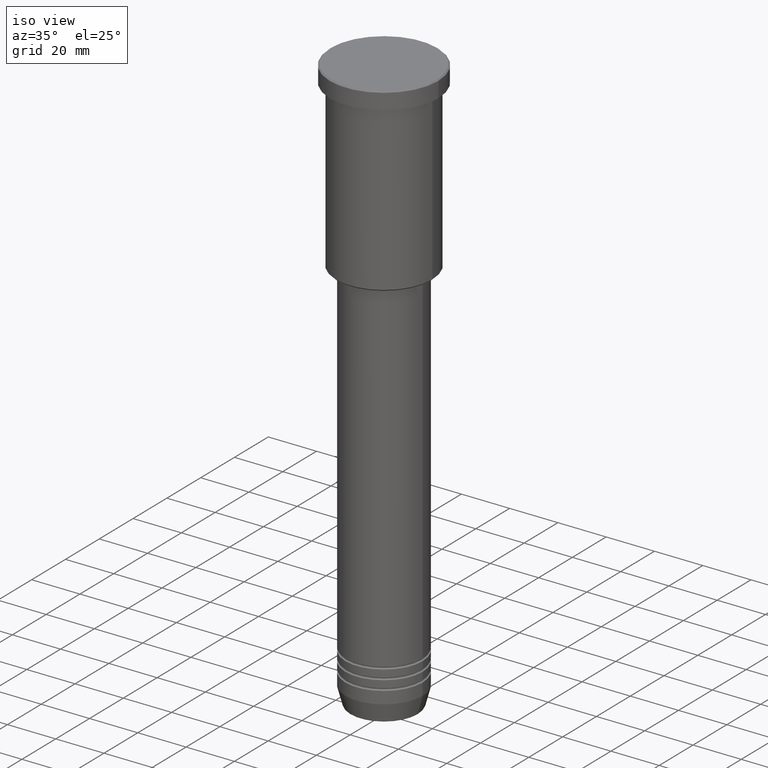
[diagram: clean part render]
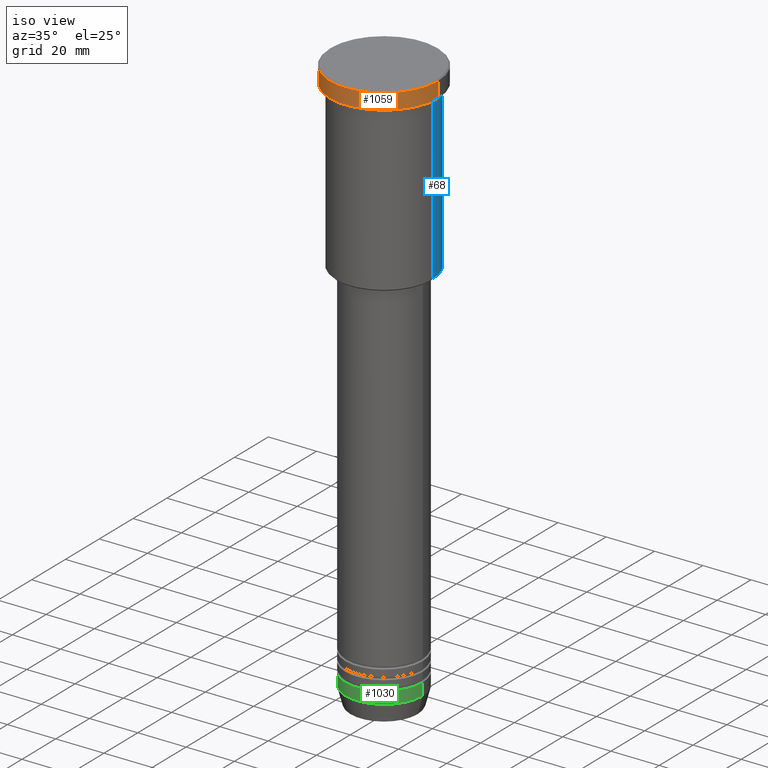
[diagram: same view with three faces highlighted in distinct colors, each labeled with its STEP entity id]
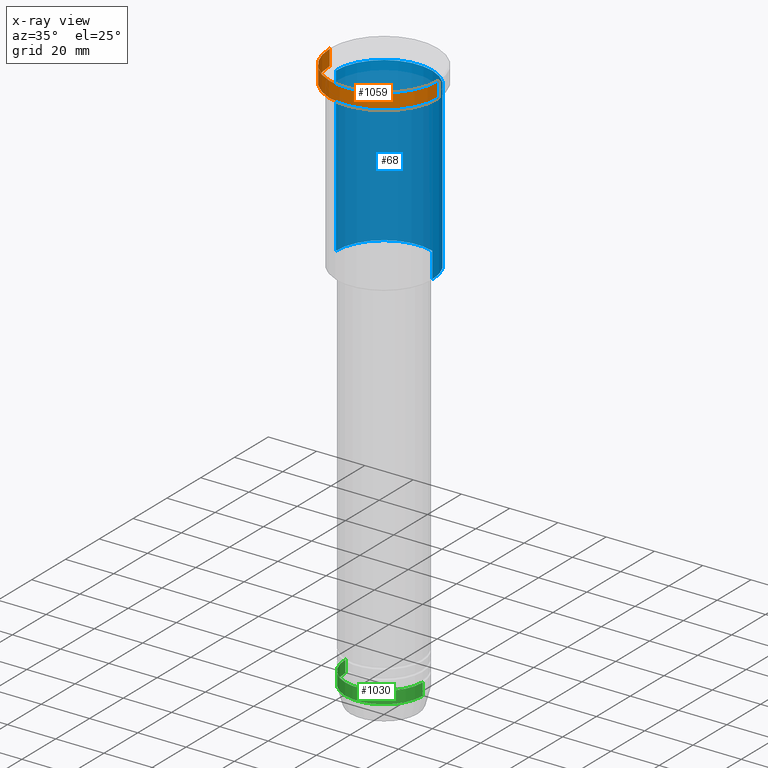
[diagram: x-ray of the same camera — body ghosted, the three highlighted faces saturated]
A machine part, iso view with three faces highlighted in distinct colors.
The next image is the same camera in x-ray (body ghosted, the three faces saturated) — at least one of them is partly hidden behind the body in this view.
Their STEP definitions:

[orange] entity #1059 — the highlighted cylindrical surface (partial cylindrical patch) has radius 22.5 mm, axis along (-0, -0, 1).
#34 = CARTESIAN_POINT ( 'NONE',  ( 22.50000000000000000, 0.000000000000000000, 0.000000000000000000 ) ) ;
#36 = CARTESIAN_POINT ( 'NONE',  ( -22.50000000000000000, 2.755455298081544778E-15, -6.999999999999995559 ) ) ;
#41 = CIRCLE ( 'NONE', #716, 22.50000000000000000 ) ;
#106 = DIRECTION ( 'NONE',  ( 0.000000000000000000, 0.000000000000000000, -1.000000000000000000 ) ) ;
#114 = CARTESIAN_POINT ( 'NONE',  ( -22.50000000000000000, 2.755455298081544778E-15, -0.5000000000000490719 ) ) ;
#122 = EDGE_CURVE ( 'NONE', #590, #516, #639, .T. ) ;
#123 = VECTOR ( 'NONE', #886, 1000.000000000000000 ) ;
#155 = DIRECTION ( 'NONE',  ( 1.000000000000000000, 0.000000000000000000, 0.000000000000000000 ) ) ;
#177 = ORIENTED_EDGE ( 'NONE', *, *, #744, .T. ) ;
#180 = DIRECTION ( 'NONE',  ( -0.000000000000000000, -0.000000000000000000, 1.000000000000000000 ) ) ;
#191 = CARTESIAN_POINT ( 'NONE',  ( 0.000000000000000000, 0.000000000000000000, -6.999999999999995559 ) ) ;
#272 = VERTEX_POINT ( 'NONE', #876 ) ;
#395 = AXIS2_PLACEMENT_3D ( 'NONE', #685, #106, #752 ) ;
#438 = AXIS2_PLACEMENT_3D ( 'NONE', #988, #180, #155 ) ;
#473 = DIRECTION ( 'NONE',  ( 1.000000000000000000, 0.000000000000000000, 0.000000000000000000 ) ) ;
#501 = DIRECTION ( 'NONE',  ( -0.000000000000000000, -0.000000000000000000, 1.000000000000000000 ) ) ;
#513 = ORIENTED_EDGE ( 'NONE', *, *, #803, .T. ) ;
#516 = VERTEX_POINT ( 'NONE', #114 ) ;
#557 = CYLINDRICAL_SURFACE ( 'NONE', #438, 22.50000000000000000 ) ;
#564 = CARTESIAN_POINT ( 'NONE',  ( 22.50000000000000000, 0.000000000000000000, -0.5000000000000490719 ) ) ;
#590 = VERTEX_POINT ( 'NONE', #36 ) ;
#639 = LINE ( 'NONE', #976, #123 ) ;
#676 = LINE ( 'NONE', #34, #909 ) ;
#685 = CARTESIAN_POINT ( 'NONE',  ( 0.000000000000000000, 0.000000000000000000, -0.5000000000000490719 ) ) ;
#716 = AXIS2_PLACEMENT_3D ( 'NONE', #191, #764, #473 ) ;
#744 = EDGE_CURVE ( 'NONE', #272, #1100, #676, .T. ) ;
#752 = DIRECTION ( 'NONE',  ( 1.000000000000000000, 0.000000000000000000, 0.000000000000000000 ) ) ;
#761 = ORIENTED_EDGE ( 'NONE', *, *, #122, .F. ) ;
#764 = DIRECTION ( 'NONE',  ( -0.000000000000000000, -0.000000000000000000, 1.000000000000000000 ) ) ;
#803 = EDGE_CURVE ( 'NONE', #1100, #516, #1023, .T. ) ;
#876 = CARTESIAN_POINT ( 'NONE',  ( 22.50000000000000000, 0.000000000000000000, -6.999999999999995559 ) ) ;
#886 = DIRECTION ( 'NONE',  ( -0.000000000000000000, -0.000000000000000000, 1.000000000000000000 ) ) ;
#906 = EDGE_CURVE ( 'NONE', #590, #272, #41, .T. ) ;
#909 = VECTOR ( 'NONE', #501, 1000.000000000000000 ) ;
#976 = CARTESIAN_POINT ( 'NONE',  ( -22.50000000000000000, 2.755455298081544778E-15, 0.000000000000000000 ) ) ;
#988 = CARTESIAN_POINT ( 'NONE',  ( 0.000000000000000000, 0.000000000000000000, 0.000000000000000000 ) ) ;
#1023 = CIRCLE ( 'NONE', #395, 22.50000000000000000 ) ;
#1028 = EDGE_LOOP ( 'NONE', ( #761, #1074, #177, #513 ) ) ;
#1059 = ADVANCED_FACE ( 'NONE', ( #1097 ), #557, .T. ) ;
#1074 = ORIENTED_EDGE ( 'NONE', *, *, #906, .T. ) ;
#1097 = FACE_OUTER_BOUND ( 'NONE', #1028, .T. ) ;
#1100 = VERTEX_POINT ( 'NONE', #564 ) ;

[blue] entity #68 — the highlighted cylindrical surface (partial cylindrical patch) has radius 20 mm, axis along (-0, -0, 1).
#28 = EDGE_CURVE ( 'NONE', #910, #960, #229, .T. ) ;
#37 = CARTESIAN_POINT ( 'NONE',  ( 20.00000000000000355, 0.000000000000000000, -75.49999999999998579 ) ) ;
#58 = CIRCLE ( 'NONE', #935, 20.00000000000000000 ) ;
#68 = ADVANCED_FACE ( 'NONE', ( #632 ), #772, .T. ) ;
#81 = VERTEX_POINT ( 'NONE', #484 ) ;
#91 = VECTOR ( 'NONE', #132, 1000.000000000000000 ) ;
#119 = DIRECTION ( 'NONE',  ( 1.000000000000000000, 0.000000000000000000, 0.000000000000000000 ) ) ;
#132 = DIRECTION ( 'NONE',  ( -0.000000000000000000, -0.000000000000000000, 1.000000000000000000 ) ) ;
#158 = EDGE_LOOP ( 'NONE', ( #1000, #529, #901, #387 ) ) ;
#208 = DIRECTION ( 'NONE',  ( 1.000000000000000000, 0.000000000000000000, 0.000000000000000000 ) ) ;
#215 = VECTOR ( 'NONE', #867, 1000.000000000000000 ) ;
#225 = LINE ( 'NONE', #601, #91 ) ;
#229 = LINE ( 'NONE', #948, #215 ) ;
#230 = CARTESIAN_POINT ( 'NONE',  ( -20.00000000000000355, 2.449293598294706907E-15, -75.49999999999998579 ) ) ;
#241 = AXIS2_PLACEMENT_3D ( 'NONE', #459, #833, #995 ) ;
#248 = EDGE_CURVE ( 'NONE', #960, #81, #58, .T. ) ;
#369 = VERTEX_POINT ( 'NONE', #230 ) ;
#387 = ORIENTED_EDGE ( 'NONE', *, *, #28, .F. ) ;
#402 = DIRECTION ( 'NONE',  ( -0.000000000000000000, -0.000000000000000000, 1.000000000000000000 ) ) ;
#413 = CARTESIAN_POINT ( 'NONE',  ( 0.000000000000000000, 0.000000000000000000, -7.999999999999994671 ) ) ;
#459 = CARTESIAN_POINT ( 'NONE',  ( 0.000000000000000000, 0.000000000000000000, -75.49999999999998579 ) ) ;
#484 = CARTESIAN_POINT ( 'NONE',  ( -20.00000000000000000, 2.449293598294706513E-15, -7.999999999999994671 ) ) ;
#529 = ORIENTED_EDGE ( 'NONE', *, *, #607, .T. ) ;
#601 = CARTESIAN_POINT ( 'NONE',  ( -20.00000000000000355, 2.449293598294706907E-15, 0.000000000000000000 ) ) ;
#607 = EDGE_CURVE ( 'NONE', #369, #81, #225, .T. ) ;
#632 = FACE_OUTER_BOUND ( 'NONE', #158, .T. ) ;
#730 = AXIS2_PLACEMENT_3D ( 'NONE', #934, #1111, #208 ) ;
#758 = CIRCLE ( 'NONE', #241, 20.00000000000000355 ) ;
#772 = CYLINDRICAL_SURFACE ( 'NONE', #730, 20.00000000000000355 ) ;
#833 = DIRECTION ( 'NONE',  ( -0.000000000000000000, -0.000000000000000000, 1.000000000000000000 ) ) ;
#867 = DIRECTION ( 'NONE',  ( -0.000000000000000000, -0.000000000000000000, 1.000000000000000000 ) ) ;
#901 = ORIENTED_EDGE ( 'NONE', *, *, #248, .F. ) ;
#910 = VERTEX_POINT ( 'NONE', #37 ) ;
#934 = CARTESIAN_POINT ( 'NONE',  ( 0.000000000000000000, 0.000000000000000000, 0.000000000000000000 ) ) ;
#935 = AXIS2_PLACEMENT_3D ( 'NONE', #413, #402, #119 ) ;
#948 = CARTESIAN_POINT ( 'NONE',  ( 20.00000000000000355, 0.000000000000000000, 0.000000000000000000 ) ) ;
#960 = VERTEX_POINT ( 'NONE', #1178 ) ;
#995 = DIRECTION ( 'NONE',  ( -1.000000000000000000, 0.000000000000000000, 0.000000000000000000 ) ) ;
#1000 = ORIENTED_EDGE ( 'NONE', *, *, #1047, .T. ) ;
#1047 = EDGE_CURVE ( 'NONE', #910, #369, #758, .T. ) ;
#1111 = DIRECTION ( 'NONE',  ( -0.000000000000000000, -0.000000000000000000, 1.000000000000000000 ) ) ;
#1178 = CARTESIAN_POINT ( 'NONE',  ( 20.00000000000000000, 0.000000000000000000, -7.999999999999994671 ) ) ;

[green] entity #1030 — the highlighted cylindrical surface (partial cylindrical patch) has radius 16 mm, axis along (-0, -0, 1).
#9 = CARTESIAN_POINT ( 'NONE',  ( 0.000000000000000000, 0.000000000000000000, 0.000000000000000000 ) ) ;
#21 = VERTEX_POINT ( 'NONE', #51 ) ;
#33 = VERTEX_POINT ( 'NONE', #1158 ) ;
#51 = CARTESIAN_POINT ( 'NONE',  ( -16.00000000000000000, 1.959434878635765131E-15, -232.5000000000000000 ) ) ;
#67 = EDGE_CURVE ( 'NONE', #33, #826, #303, .T. ) ;
#83 = CARTESIAN_POINT ( 'NONE',  ( 16.00000000000000000, 0.000000000000000000, -232.5000000000000000 ) ) ;
#93 = EDGE_CURVE ( 'NONE', #807, #826, #802, .T. ) ;
#130 = EDGE_LOOP ( 'NONE', ( #173, #342, #966, #1152 ) ) ;
#154 = CARTESIAN_POINT ( 'NONE',  ( 16.00000000000000000, 0.000000000000000000, -227.5000000000000000 ) ) ;
#173 = ORIENTED_EDGE ( 'NONE', *, *, #675, .F. ) ;
#194 = CARTESIAN_POINT ( 'NONE',  ( 0.000000000000000000, 0.000000000000000000, -232.5000000000000000 ) ) ;
#226 = CARTESIAN_POINT ( 'NONE',  ( -16.00000000000000000, 1.959434878635765131E-15, 0.000000000000000000 ) ) ;
#235 = DIRECTION ( 'NONE',  ( -0.000000000000000000, -0.000000000000000000, 1.000000000000000000 ) ) ;
#247 = CYLINDRICAL_SURFACE ( 'NONE', #257, 16.00000000000000000 ) ;
#256 = DIRECTION ( 'NONE',  ( 1.000000000000000000, 0.000000000000000000, 0.000000000000000000 ) ) ;
#257 = AXIS2_PLACEMENT_3D ( 'NONE', #9, #642, #256 ) ;
#303 = CIRCLE ( 'NONE', #474, 16.00000000000000000 ) ;
#328 = CIRCLE ( 'NONE', #846, 16.00000000000000000 ) ;
#331 = LINE ( 'NONE', #226, #973 ) ;
#342 = ORIENTED_EDGE ( 'NONE', *, *, #1127, .T. ) ;
#409 = CARTESIAN_POINT ( 'NONE',  ( 16.00000000000000000, 0.000000000000000000, 0.000000000000000000 ) ) ;
#444 = DIRECTION ( 'NONE',  ( -0.000000000000000000, -0.000000000000000000, 1.000000000000000000 ) ) ;
#474 = AXIS2_PLACEMENT_3D ( 'NONE', #890, #444, #1177 ) ;
#488 = DIRECTION ( 'NONE',  ( 1.000000000000000000, 0.000000000000000000, 0.000000000000000000 ) ) ;
#515 = VECTOR ( 'NONE', #1143, 1000.000000000000000 ) ;
#642 = DIRECTION ( 'NONE',  ( -0.000000000000000000, -0.000000000000000000, 1.000000000000000000 ) ) ;
#675 = EDGE_CURVE ( 'NONE', #21, #33, #331, .T. ) ;
#729 = FACE_OUTER_BOUND ( 'NONE', #130, .T. ) ;
#802 = LINE ( 'NONE', #409, #515 ) ;
#807 = VERTEX_POINT ( 'NONE', #83 ) ;
#826 = VERTEX_POINT ( 'NONE', #154 ) ;
#843 = DIRECTION ( 'NONE',  ( -0.000000000000000000, -0.000000000000000000, 1.000000000000000000 ) ) ;
#846 = AXIS2_PLACEMENT_3D ( 'NONE', #194, #843, #488 ) ;
#890 = CARTESIAN_POINT ( 'NONE',  ( 0.000000000000000000, 0.000000000000000000, -227.5000000000000000 ) ) ;
#966 = ORIENTED_EDGE ( 'NONE', *, *, #93, .T. ) ;
#973 = VECTOR ( 'NONE', #235, 1000.000000000000000 ) ;
#1030 = ADVANCED_FACE ( 'NONE', ( #729 ), #247, .T. ) ;
#1127 = EDGE_CURVE ( 'NONE', #21, #807, #328, .T. ) ;
#1143 = DIRECTION ( 'NONE',  ( -0.000000000000000000, -0.000000000000000000, 1.000000000000000000 ) ) ;
#1152 = ORIENTED_EDGE ( 'NONE', *, *, #67, .F. ) ;
#1158 = CARTESIAN_POINT ( 'NONE',  ( -16.00000000000000000, 1.959434878635765131E-15, -227.5000000000000000 ) ) ;
#1177 = DIRECTION ( 'NONE',  ( 1.000000000000000000, 0.000000000000000000, 0.000000000000000000 ) ) ;